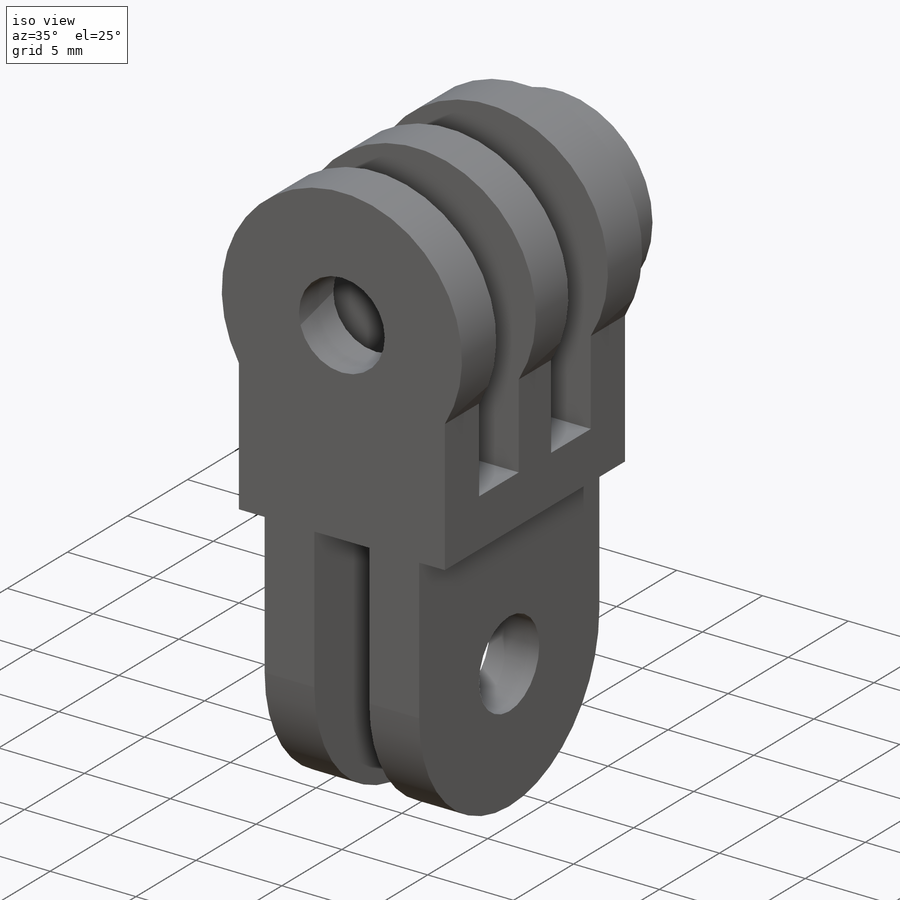
[diagram: iso view]
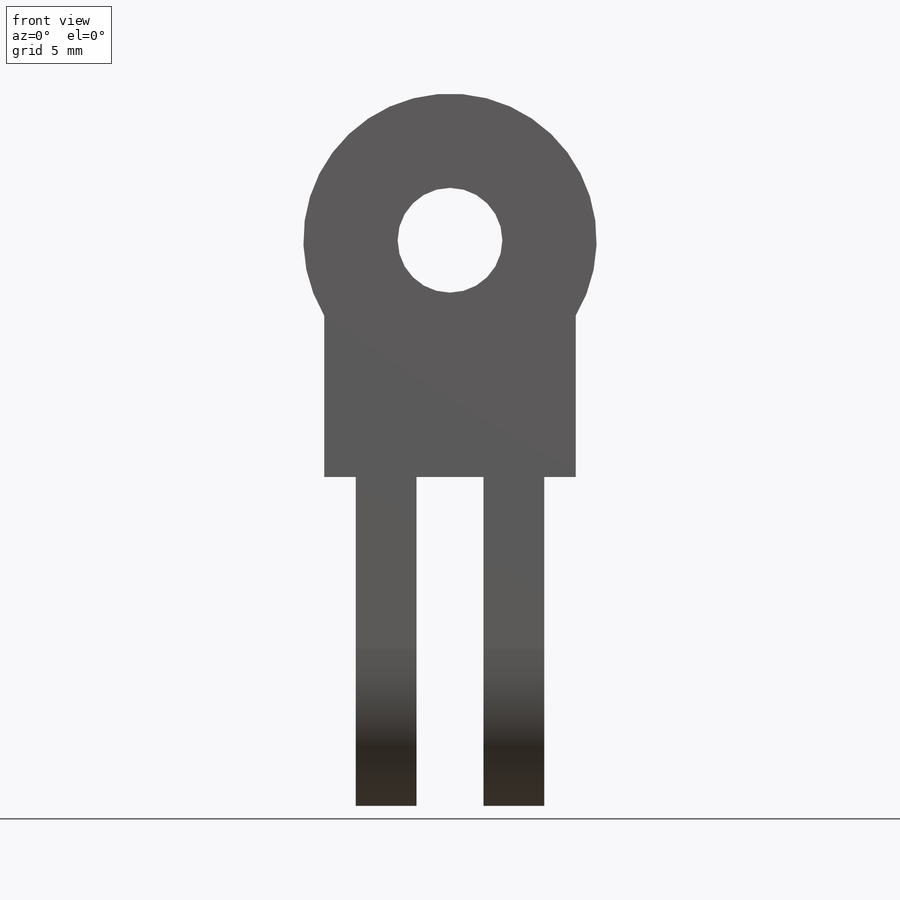
[diagram: front view]
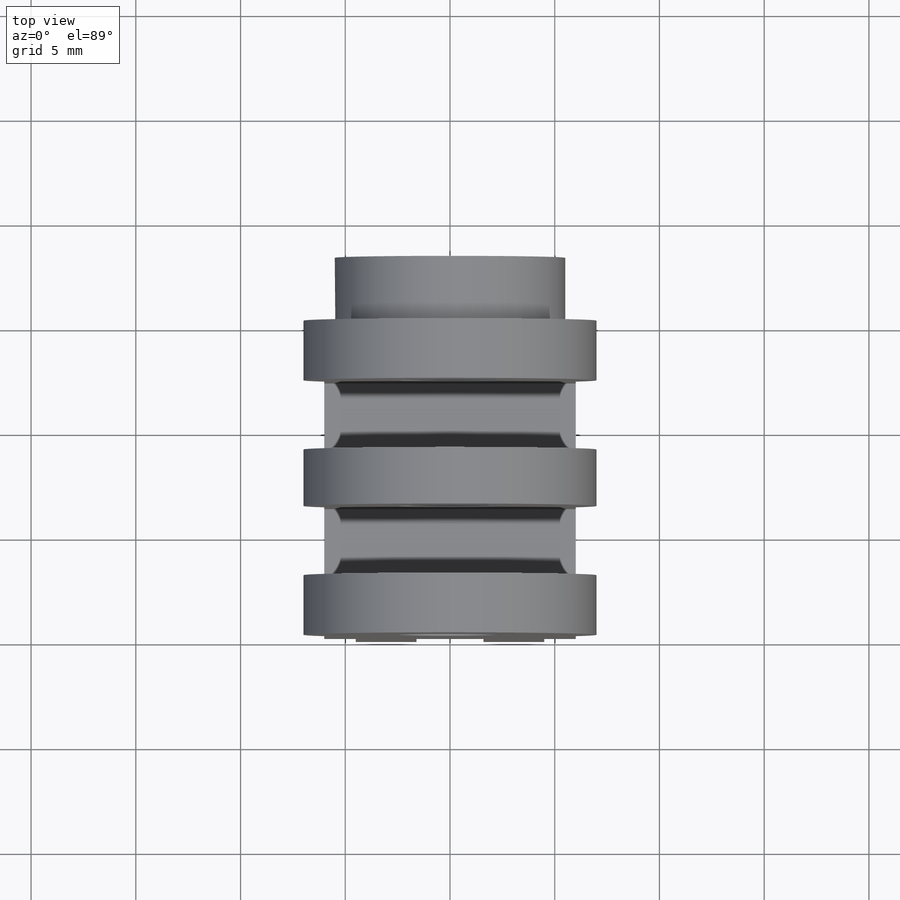
[diagram: top view]
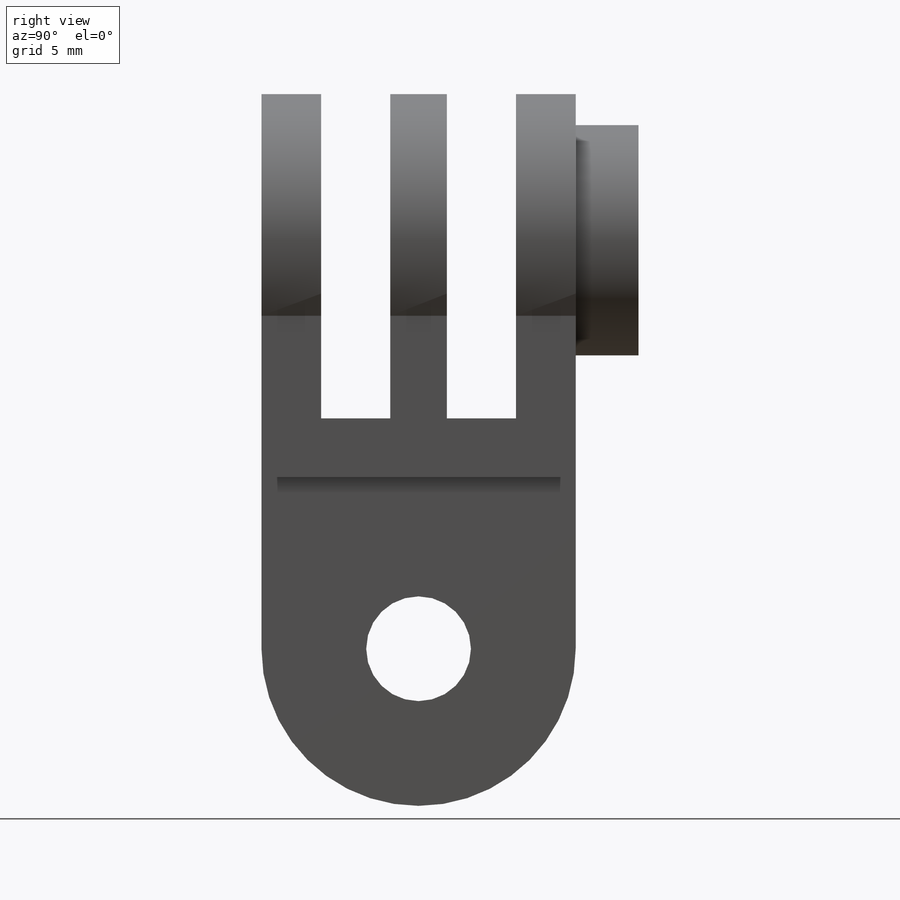
[diagram: right view]
SOLIDWORKS PART (.sldprt)
format: sldprt  version: not decoded by parser v0  size: 251,392 bytes
history: native  units: mm
features: sketch x5, plane x3, cut_extrude x3, extrude x2, material x1 (+10 scaffold rows collapsed)
feature tree (24):
  scaffold x10  (default folders/planes/origin — collapsed)
  material  "Matériau <non spécifié>"
  plane  "Plan de face"
  plane  "Plan de dessus"
  plane  "Plan de droite"
  sketch  "Esquisse1"  dims[c1.D4=20.0mm c1.D8=~2.560764mm c1.D1=9.5mm c1.D2=34.0mm c1.D3=12.0mm c2.D1=28.5mm c2.D4=1.5mm c2.D5=3.2mm c2.D6=1.5mm c2.D7=2.9mm c2.D8=~15.697402mm c3.D1=7.0mm]
  extrude  "Boss.-Extru.1"  Depth=15mm
  sketch  "Esquisse2"  dims[D1=15.5mm D2=3.3mm D3=3.3mm D4=2.85mm D5=2.85mm D6=15.5mm]
  cut_extrude  "Enlèv. mat.-Extru.1"  [1 undecoded]
  sketch  "Esquisse5"  dims[c1.D1=~13.343734mm c1.D3=5.0mm c2.D1=7.5mm c2.D2=~9.651726mm c3.D2=90.0deg c4.D2=7.5mm c4.D4=~5.27346mm]
  cut_extrude  "Enlèv. mat.-Extru.4"  Depth=10mm
  sketch  "Esquisse6"  dims[D1=5.0mm]
  extrude  "Boss.-Extru.2"  Depth=3mm
  sketch  "Esquisse7"  dims[c1.D1=4.5mm c2.D1=120.0deg c2.D2=~10.736007mm]
  cut_extrude  "Enlèv. mat.-Extru.5"  Depth=3mm
decode coverage: 9 of 10 modeling features carry decoded parameters
note: ~ marks probable driven/reference dimensions
note: 1 parameter value undecoded
note: suppression state not decoded; provenance and decode notes live in map.json
